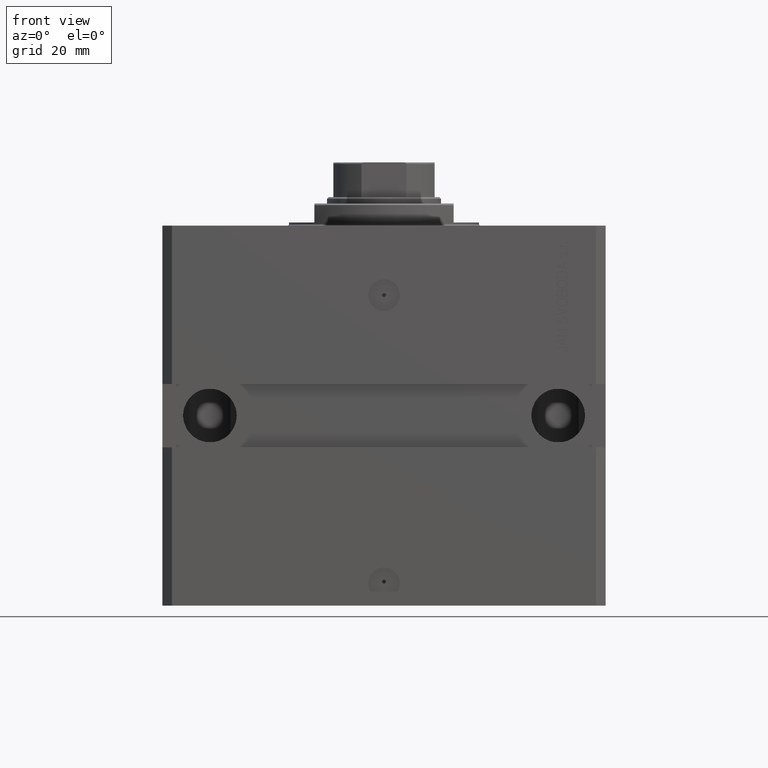
[diagram: clean part render]
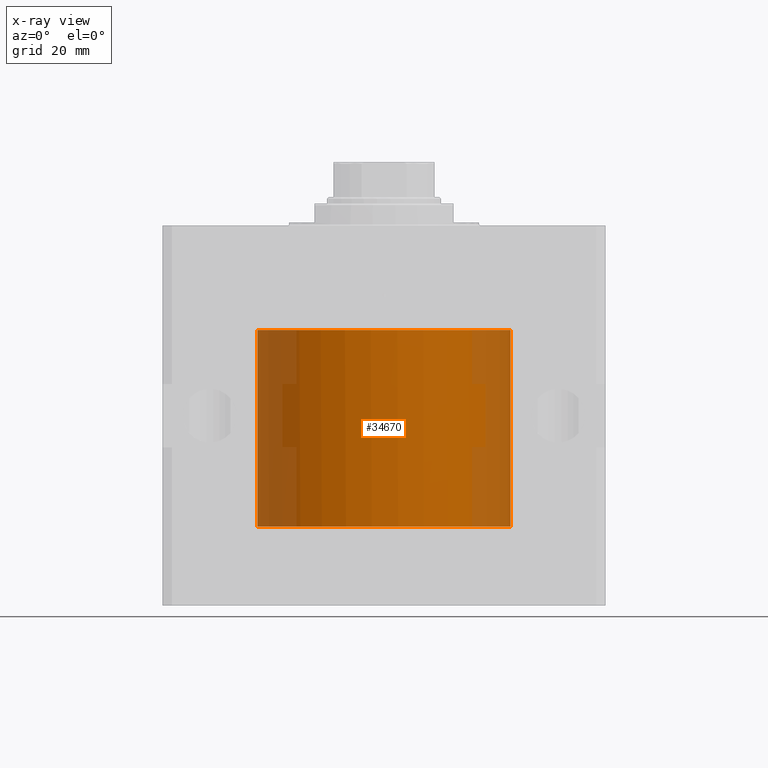
[diagram: x-ray — body ghosted, one internal face saturated and labeled with its STEP entity id]
A machine part, front view, then the same camera in x-ray: the body is ghosted and one INTERNAL B-rep face — a face not visible from any outside direction — is saturated and labeled: STEP entity #34670.
In plain terms, the highlighted cylindrical surface (partial cylindrical patch) has radius 40 mm, axis along (0, 0, 1).
Its self-contained STEP definition (entity closure, byte-faithful):
#32 = VERTEX_POINT ( 'NONE', #17655 ) ;
#2038 = CARTESIAN_POINT ( 'NONE',  ( -39.99511688944041055, -0.6249999999999984457, -94.91738953319639904 ) ) ;
#2653 = CARTESIAN_POINT ( 'NONE',  ( -39.99628006738579700, -0.5575649541242133633, -34.67384558076868473 ) ) ;
#4497 = DIRECTION ( 'NONE',  ( 1.000000000000000000, 0.000000000000000000, 0.000000000000000000 ) ) ;
#5514 = CARTESIAN_POINT ( 'NONE',  ( -40.00000000000012790, 9.803334896741571174E-13, -94.37499999999168665 ) ) ;
#5634 = EDGE_CURVE ( 'NONE', #32, #38471, #36630, .T. ) ;
#5690 = DIRECTION ( 'NONE',  ( 0.000000000000000000, 0.000000000000000000, 1.000000000000000000 ) ) ;
#6338 = CARTESIAN_POINT ( 'NONE',  ( -40.00000000000000000, 1.067655236296513633E-14, -34.37500000000000000 ) ) ;
#6396 = CARTESIAN_POINT ( 'NONE',  ( 0.000000000000000000, 0.000000000000000000, -95.00000000000000000 ) ) ;
#6452 = CARTESIAN_POINT ( 'NONE',  ( -39.99883487683936778, -0.3263849897136422706, -94.44258365357569573 ) ) ;
#7608 = CARTESIAN_POINT ( 'NONE',  ( 40.00000000000000000, 0.000000000000000000, -95.00000000000000000 ) ) ;
#9707 = DIRECTION ( 'NONE',  ( -0.000000000000000000, -0.000000000000000000, 1.000000000000000000 ) ) ;
#10350 = FACE_OUTER_BOUND ( 'NONE', #35402, .T. ) ;
#11904 = ORIENTED_EDGE ( 'NONE', *, *, #17851, .T. ) ;
#12080 = LINE ( 'NONE', #12322, #22458 ) ;
#12180 = EDGE_CURVE ( 'NONE', #24710, #32451, #35659, .T. ) ;
#12259 = DIRECTION ( 'NONE',  ( -0.000000000000000000, -0.000000000000000000, 1.000000000000000000 ) ) ;
#12322 = CARTESIAN_POINT ( 'NONE',  ( -40.00000000000000000, 4.898587196589413026E-15, -95.00000000000000000 ) ) ;
#12425 = EDGE_CURVE ( 'NONE', #32451, #27988, #47054, .T. ) ;
#12782 = EDGE_CURVE ( 'NONE', #46481, #32, #25999, .T. ) ;
#13268 = CARTESIAN_POINT ( 'NONE',  ( -39.99511472755523300, -0.6251383438089350708, -34.83568927900195433 ) ) ;
#13347 = CARTESIAN_POINT ( 'NONE',  ( 0.000000000000000000, 0.000000000000000000, -95.00000000000000000 ) ) ;
#13754 = CARTESIAN_POINT ( 'NONE',  ( -39.99883003604586662, -0.3269459501876756935, -34.44289881627523187 ) ) ;
#15522 = EDGE_CURVE ( 'NONE', #38471, #27988, #48358, .T. ) ;
#16190 = CARTESIAN_POINT ( 'NONE',  ( 40.00000000000000000, 0.000000000000000000, -95.00000000000000000 ) ) ;
#17493 = VECTOR ( 'NONE', #9707, 1000.000000000000000 ) ;
#17655 = CARTESIAN_POINT ( 'NONE',  ( -40.00000000000000000, 1.067655236296513633E-14, -34.37500000000000000 ) ) ;
#17851 = EDGE_CURVE ( 'NONE', #30635, #46481, #12080, .T. ) ;
#18106 = B_SPLINE_CURVE_WITH_KNOTS ( 'NONE', 3,
 ( #47197, #2038, #25474, #39822, #36602, #6452, #47678, #28948 ),
 .UNSPECIFIED., .F., .F.,
 ( 4, 2, 2, 4 ),
 ( 0.000000000000000000, 0.0002443135086022654636, 0.0004886270172045309272, 0.0009772540344090913447 ),
 .UNSPECIFIED. ) ;
#19528 = CARTESIAN_POINT ( 'NONE',  ( 40.00000000000000000, 0.000000000000000000, -33.00000000000000000 ) ) ;
#20214 = CARTESIAN_POINT ( 'NONE',  ( -40.00000000000004974, 3.462873814982701370E-13, -35.62500000000321165 ) ) ;
#21642 = CARTESIAN_POINT ( 'NONE',  ( -39.99883528402092026, -0.3263077590334985123, -35.55741295708847360 ) ) ;
#22458 = VECTOR ( 'NONE', #39248, 1000.000000000000000 ) ;
#24710 = VERTEX_POINT ( 'NONE', #41944 ) ;
#25119 = CARTESIAN_POINT ( 'NONE',  ( -39.99999999999999289, -0.1651462076627460140, -34.37500000000000711 ) ) ;
#25474 = CARTESIAN_POINT ( 'NONE',  ( -39.99538013934520109, -0.6087307573489142420, -94.83632604952211409 ) ) ;
#25999 = B_SPLINE_CURVE_WITH_KNOTS ( 'NONE', 3,
 ( #32062, #47089, #21642, #36736, #36242, #13268, #2653, #13754, #25119, #6338 ),
 .UNSPECIFIED., .F., .F.,
 ( 4, 2, 2, 2, 4 ),
 ( 0.001954065476890838940, 0.002442471498614544496, 0.002930877520338250053, 0.003419283542061955609, 0.003907689563785661166 ),
 .UNSPECIFIED. ) ;
#26611 = ORIENTED_EDGE ( 'NONE', *, *, #15522, .T. ) ;
#27094 = AXIS2_PLACEMENT_3D ( 'NONE', #30932, #27217, #4497 ) ;
#27217 = DIRECTION ( 'NONE',  ( 0.000000000000000000, 0.000000000000000000, 1.000000000000000000 ) ) ;
#27988 = VERTEX_POINT ( 'NONE', #19528 ) ;
#28948 = CARTESIAN_POINT ( 'NONE',  ( -40.00000000000012790, 9.803334896741571174E-13, -94.37499999999168665 ) ) ;
#30635 = VERTEX_POINT ( 'NONE', #5514 ) ;
#30932 = CARTESIAN_POINT ( 'NONE',  ( 0.000000000000000000, 0.000000000000000000, -33.00000000000000000 ) ) ;
#31320 = CARTESIAN_POINT ( 'NONE',  ( -40.00000000000000000, 4.898587196589413026E-15, -33.00000000000000000 ) ) ;
#31901 = DIRECTION ( 'NONE',  ( 1.000000000000000000, 0.000000000000000000, 0.000000000000000000 ) ) ;
#32062 = CARTESIAN_POINT ( 'NONE',  ( -40.00000000000004974, 3.462873814982701370E-13, -35.62500000000321165 ) ) ;
#32451 = VERTEX_POINT ( 'NONE', #7608 ) ;
#33087 = CYLINDRICAL_SURFACE ( 'NONE', #38796, 40.00000000000000000 ) ;
#33360 = ORIENTED_EDGE ( 'NONE', *, *, #5634, .T. ) ;
#33576 = DIRECTION ( 'NONE',  ( -0.000000000000000000, -0.000000000000000000, 1.000000000000000000 ) ) ;
#34670 = ADVANCED_FACE ( 'NONE', ( #10350 ), #33087, .F. ) ;
#35402 = EDGE_LOOP ( 'NONE', ( #44802, #11904, #41970, #33360, #26611, #46471, #46316 ) ) ;
#35659 = CIRCLE ( 'NONE', #43542, 40.00000000000000000 ) ;
#36242 = CARTESIAN_POINT ( 'NONE',  ( -39.99511905822721047, -0.6248612145393632744, -35.16536149642366382 ) ) ;
#36602 = CARTESIAN_POINT ( 'NONE',  ( -39.99692294640741608, -0.4994842196615993934, -94.61555975691676679 ) ) ;
#36630 = LINE ( 'NONE', #40082, #17493 ) ;
#36736 = CARTESIAN_POINT ( 'NONE',  ( -39.99628864179531007, -0.5569521649436425248, -35.32709363231368371 ) ) ;
#38012 = EDGE_CURVE ( 'NONE', #24710, #30635, #18106, .T. ) ;
#38471 = VERTEX_POINT ( 'NONE', #31320 ) ;
#38796 = AXIS2_PLACEMENT_3D ( 'NONE', #6396, #33576, #40491 ) ;
#39248 = DIRECTION ( 'NONE',  ( -0.000000000000000000, -0.000000000000000000, 1.000000000000000000 ) ) ;
#39822 = CARTESIAN_POINT ( 'NONE',  ( -39.99628640843519634, -0.5459479463223861906, -94.68490773269725480 ) ) ;
#40082 = CARTESIAN_POINT ( 'NONE',  ( -40.00000000000000000, 4.898587196589413026E-15, -95.00000000000000000 ) ) ;
#40491 = DIRECTION ( 'NONE',  ( 1.000000000000000000, 0.000000000000000000, 0.000000000000000000 ) ) ;
#41944 = CARTESIAN_POINT ( 'NONE',  ( -39.99511688944039633, -0.6249999999999983347, -95.00000000000000000 ) ) ;
#41970 = ORIENTED_EDGE ( 'NONE', *, *, #12782, .T. ) ;
#43542 = AXIS2_PLACEMENT_3D ( 'NONE', #13347, #5690, #31901 ) ;
#44802 = ORIENTED_EDGE ( 'NONE', *, *, #38012, .T. ) ;
#45159 = VECTOR ( 'NONE', #12259, 1000.000000000000000 ) ;
#46316 = ORIENTED_EDGE ( 'NONE', *, *, #12180, .F. ) ;
#46471 = ORIENTED_EDGE ( 'NONE', *, *, #12425, .F. ) ;
#46481 = VERTEX_POINT ( 'NONE', #20214 ) ;
#47054 = LINE ( 'NONE', #16190, #45159 ) ;
#47089 = CARTESIAN_POINT ( 'NONE',  ( -40.00000000000000000, -0.1631285566730246439, -35.62500000000014211 ) ) ;
#47197 = CARTESIAN_POINT ( 'NONE',  ( -39.99511688944039633, -0.6249999999999983347, -95.00000000000000000 ) ) ;
#47678 = CARTESIAN_POINT ( 'NONE',  ( -39.99999999999999289, -0.1631018314110818934, -94.37499999999961631 ) ) ;
#48358 = CIRCLE ( 'NONE', #27094, 40.00000000000000000 ) ;